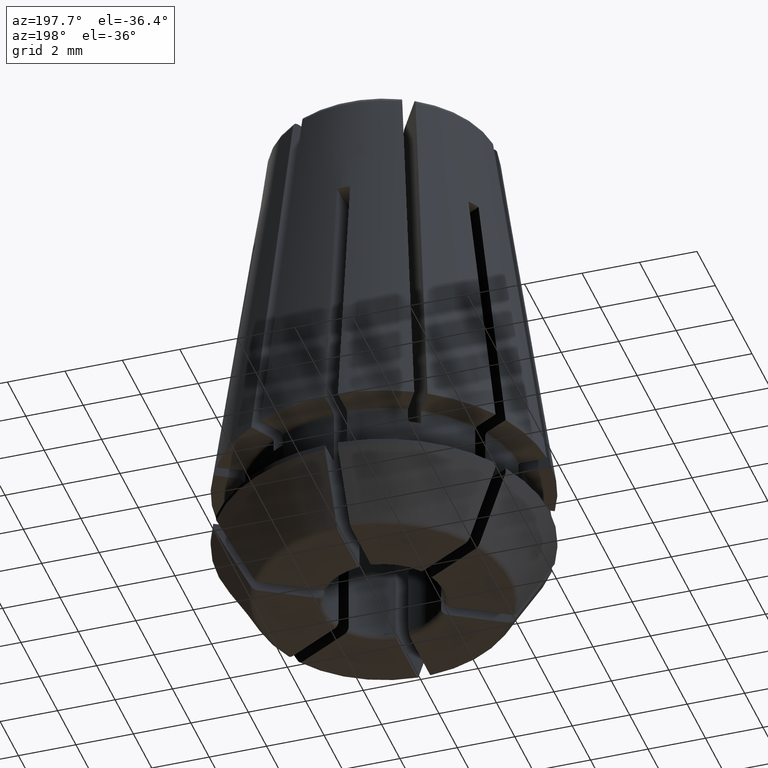
[diagram: clean part render]
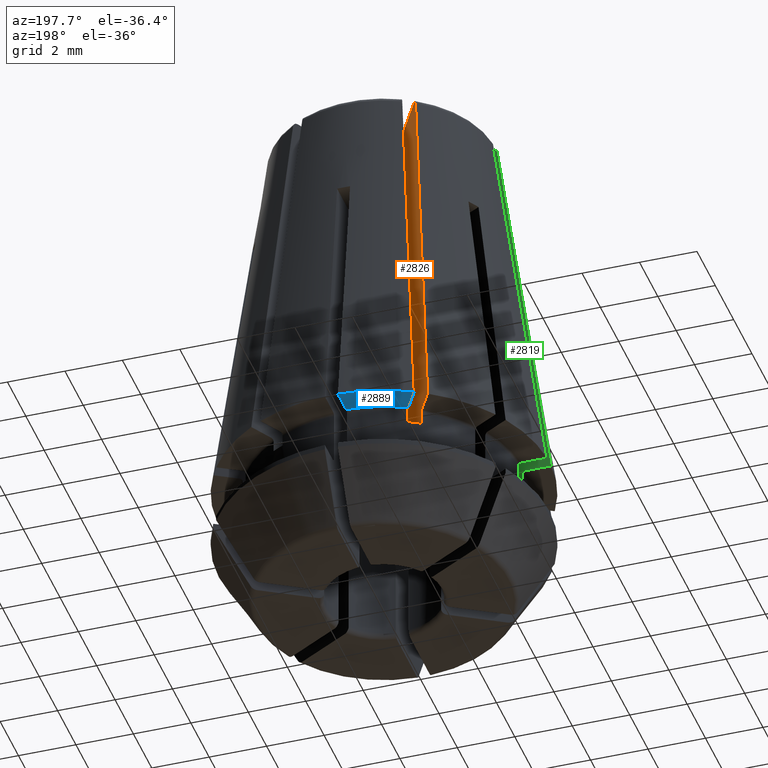
[diagram: same view with three faces highlighted in distinct colors, each labeled with its STEP entity id]
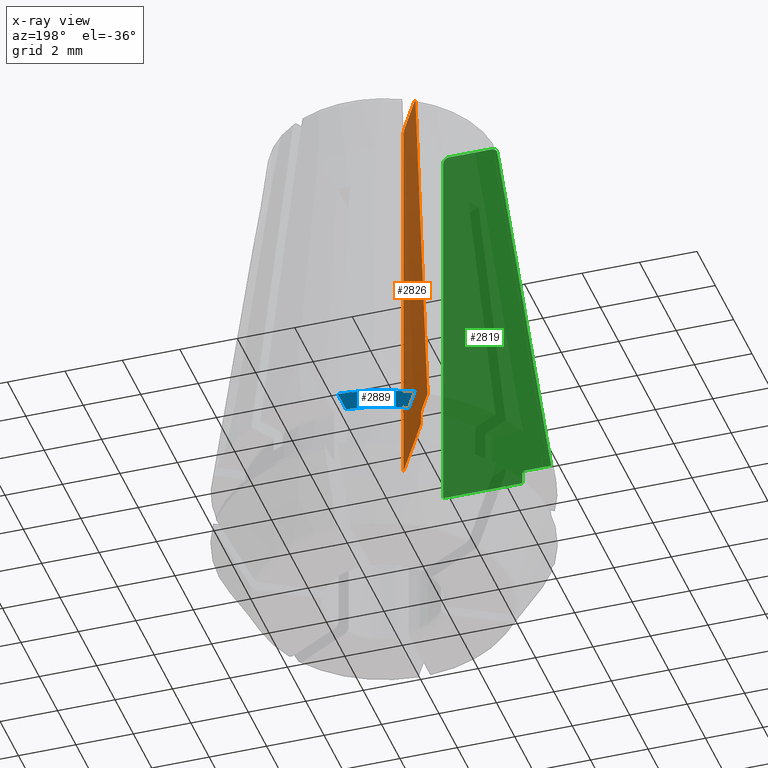
[diagram: x-ray of the same camera — body ghosted, the three highlighted faces saturated]
A machine part, auxiliary view with three faces highlighted in distinct colors.
The next image is the same camera in x-ray (body ghosted, the three faces saturated) — at least one of them is partly hidden behind the body in this view.
Their STEP definitions:

[orange] entity #2826 — the highlighted planar face has unit normal (-0.866, -0.5, 0).
#76=LINE('',#4209,#244);
#119=LINE('',#4611,#287);
#120=LINE('',#4625,#288);
#121=LINE('',#4629,#289);
#122=LINE('',#4631,#290);
#244=VECTOR('',#3341,1000.);
#287=VECTOR('',#3520,1000.);
#288=VECTOR('',#3521,1000.);
#289=VECTOR('',#3524,1000.);
#290=VECTOR('',#3525,1000.);
#420=PLANE('',#3054);
#529=CIRCLE('',#3055,25.);
#814=ORIENTED_EDGE('',*,*,#1619,.F.);
#815=ORIENTED_EDGE('',*,*,#1700,.F.);
#816=ORIENTED_EDGE('',*,*,#1701,.F.);
#817=ORIENTED_EDGE('',*,*,#1702,.F.);
#818=ORIENTED_EDGE('',*,*,#1582,.F.);
#819=ORIENTED_EDGE('',*,*,#1586,.T.);
#820=ORIENTED_EDGE('',*,*,#1703,.F.);
#821=ORIENTED_EDGE('',*,*,#1704,.F.);
#822=ORIENTED_EDGE('',*,*,#1705,.F.);
#823=ORIENTED_EDGE('',*,*,#1706,.T.);
#1582=EDGE_CURVE('',#2035,#2036,#76,.T.);
#1586=EDGE_CURVE('',#2035,#2038,#2312,.T.);
#1619=EDGE_CURVE('',#2069,#2071,#2327,.T.);
#1700=EDGE_CURVE('',#2134,#2069,#119,.T.);
#1701=EDGE_CURVE('',#2135,#2134,#2348,.T.);
#1702=EDGE_CURVE('',#2036,#2135,#2349,.T.);
#1703=EDGE_CURVE('',#2136,#2038,#120,.T.);
#1704=EDGE_CURVE('',#2137,#2136,#529,.T.);
#1705=EDGE_CURVE('',#2138,#2137,#121,.T.);
#1706=EDGE_CURVE('',#2138,#2071,#122,.T.);
#2035=VERTEX_POINT('',#4208);
#2036=VERTEX_POINT('',#4210);
#2038=VERTEX_POINT('',#4219);
#2069=VERTEX_POINT('',#4354);
#2071=VERTEX_POINT('',#4360);
#2134=VERTEX_POINT('',#4612);
#2135=VERTEX_POINT('',#4620);
#2136=VERTEX_POINT('',#4626);
#2137=VERTEX_POINT('',#4628);
#2138=VERTEX_POINT('',#4630);
#2312=B_SPLINE_CURVE_WITH_KNOTS('',3,(#4220,#4221,#4222,#4223),
 .UNSPECIFIED.,.F.,.F.,(4,4),(2.16840434497101E-19,0.000313325900545087),
 .UNSPECIFIED.);
#2327=B_SPLINE_CURVE_WITH_KNOTS('',3,(#4356,#4357,#4358,#4359),
 .UNSPECIFIED.,.F.,.F.,(4,4),(2.95226947766913E-18,0.000156301684380105),
 .UNSPECIFIED.);
#2348=B_SPLINE_CURVE_WITH_KNOTS('',3,(#4613,#4614,#4615,#4616,#4617,#4618,
#4619),.UNSPECIFIED.,.F.,.F.,(4,3,4),(2.01972124516081E-7,0.00680645793045884,
0.0134593135604364),.UNSPECIFIED.);
#2349=B_SPLINE_CURVE_WITH_KNOTS('',3,(#4621,#4622,#4623,#4624),
 .UNSPECIFIED.,.F.,.F.,(4,4),(4.09133713542521E-18,0.000285017154434955),
 .UNSPECIFIED.);
#2468=EDGE_LOOP('',(#814,#815,#816,#817,#818,#819,#820,#821,#822,#823));
#2626=FACE_BOUND('',#2468,.T.);
#2826=ADVANCED_FACE('',(#2626),#420,.F.);
#3054=AXIS2_PLACEMENT_3D('',#4610,#3518,#3519);
#3055=AXIS2_PLACEMENT_3D('',#4627,#3522,#3523);
#3341=DIRECTION('',(-0.5,0.866025403784438,0.));
#3518=DIRECTION('',(-0.866025403784438,-0.5,0.));
#3519=DIRECTION('',(-0.5,0.866025403784438,0.));
#3520=DIRECTION('',(0.5,-0.866025403784438,0.));
#3521=DIRECTION('',(0.,0.,1.));
#3522=DIRECTION('',(-0.866025403784439,-0.5,0.));
#3523=DIRECTION('',(0.,0.,-1.));
#3524=DIRECTION('',(0.5,-0.866025403784438,0.));
#3525=DIRECTION('',(0.,0.,1.));
#4208=CARTESIAN_POINT('',(-1.28908775248723,1.78276548272268,13.5));
#4209=CARTESIAN_POINT('',(0.724854630137124,-1.70548504749904,13.5));
#4210=CARTESIAN_POINT('',(-2.03083290309375,3.06750576984101,13.5));
#4219=CARTESIAN_POINT('',(-1.18850744055169,1.60855527220919,13.3000000000001));
#4220=CARTESIAN_POINT('',(-1.28908775248722,1.78276548272268,13.5));
#4221=CARTESIAN_POINT('',(-1.23611597287897,1.69101566907387,13.5));
#4222=CARTESIAN_POINT('',(-1.18850744055155,1.60855527220898,13.4059604262366));
#4223=CARTESIAN_POINT('',(-1.18850744055151,1.60855527220891,13.3000000000001));
#4354=CARTESIAN_POINT('',(-2.61724477419864,4.0832009247562,-3.86525730697882E-28));
#4356=CARTESIAN_POINT('',(-2.61724477419863,4.0832009247562,-7.59586770066326E-28));
#4357=CARTESIAN_POINT('',(-2.59081957756818,4.03743114159227,-3.18414467700848E-15));
#4358=CARTESIAN_POINT('',(-2.56718974587319,3.99650307252225,-0.04714797776628));
#4359=CARTESIAN_POINT('',(-2.56718974587317,3.9965030725222,-9.99999999999019E-02));
#4360=CARTESIAN_POINT('',(-2.56718974587329,3.99650307252239,-9.99999999999524E-02));
#4610=CARTESIAN_POINT('',(-12.6948557158515,21.538135094611,9.29795897113271));
#4611=CARTESIAN_POINT('',(1.18512586378746,-2.50269820944381,1.0842021724855E-16));
#4612=CARTESIAN_POINT('',(-3.06765378567819,4.86333221682564,4.68190320287022E-17));
#4613=CARTESIAN_POINT('',(-2.13003592859739,3.23933045027783,13.327834620192));
#4614=CARTESIAN_POINT('',(-2.28817192716575,3.51323003430388,11.0812355018997));
#4615=CARTESIAN_POINT('',(-2.44624638924086,3.78702303399709,8.83461905702039));
#4616=CARTESIAN_POINT('',(-2.60428967405201,4.06076203308506,6.58799384239535));
#4617=CARTESIAN_POINT('',(-2.75877095773793,4.32833146524755,4.39200337351099));
#4618=CARTESIAN_POINT('',(-2.91322137466781,4.5958474346203,2.19600421884523));
#4619=CARTESIAN_POINT('',(-3.0676537856782,4.86333221682564,2.86773355150554E-15));
#4620=CARTESIAN_POINT('',(-2.13003592859738,3.23933045027784,13.327834620192));
#4621=CARTESIAN_POINT('',(-2.03083290309374,3.06750576984101,13.5));
#4622=CARTESIAN_POINT('',(-2.07901910026541,3.15096671156587,13.5));
#4623=CARTESIAN_POINT('',(-2.12331826427536,3.22769511436394,13.4232708199153));
#4624=CARTESIAN_POINT('',(-2.13003592859737,3.23933045027785,13.327834620192));
#4625=CARTESIAN_POINT('',(-1.18850744055186,1.60855527220947,60.));
#4626=CARTESIAN_POINT('',(-1.18850744055185,1.60855527220947,-0.470142045443427));
#4627=CARTESIAN_POINT('',(-12.6948557158515,21.538135094611,9.29795897113271));
#4628=CARTESIAN_POINT('',(-1.19485571585149,1.61955080756887,-0.5));
#4629=CARTESIAN_POINT('',(-1.19485571585149,1.61955080756887,-0.5));
#4630=CARTESIAN_POINT('',(-2.56718974587341,3.99650307252258,-0.5));
#4631=CARTESIAN_POINT('',(-2.56718974587341,3.99650307252258,60.));

[blue] entity #2889 — the highlighted planar face has unit normal (0, 0, 1).
#189=LINE('',#5233,#357);
#190=LINE('',#5234,#358);
#357=VECTOR('',#3840,1000.);
#358=VECTOR('',#3841,1000.);
#443=PLANE('',#3179);
#500=CIRCLE('',#3000,5.75);
#590=CIRCLE('',#3177,4.85);
#1123=ORIENTED_EDGE('',*,*,#1891,.F.);
#1124=ORIENTED_EDGE('',*,*,#1602,.F.);
#1125=ORIENTED_EDGE('',*,*,#1892,.T.);
#1126=ORIENTED_EDGE('',*,*,#1888,.T.);
#1602=EDGE_CURVE('',#2054,#2048,#500,.T.);
#1888=EDGE_CURVE('',#2249,#2248,#590,.T.);
#1891=EDGE_CURVE('',#2048,#2248,#189,.T.);
#1892=EDGE_CURVE('',#2054,#2249,#190,.T.);
#2048=VERTEX_POINT('',#4263);
#2054=VERTEX_POINT('',#4299);
#2248=VERTEX_POINT('',#5220);
#2249=VERTEX_POINT('',#5222);
#2531=EDGE_LOOP('',(#1123,#1124,#1125,#1126));
#2689=FACE_BOUND('',#2531,.T.);
#2889=ADVANCED_FACE('',(#2689),#443,.F.);
#3000=AXIS2_PLACEMENT_3D('',#4300,#3368,#3369);
#3177=AXIS2_PLACEMENT_3D('',#5221,#3834,#3835);
#3179=AXIS2_PLACEMENT_3D('',#5232,#3838,#3839);
#3368=DIRECTION('',(0.,0.,1.));
#3369=DIRECTION('',(1.,0.,0.));
#3834=DIRECTION('',(0.,0.,1.));
#3835=DIRECTION('',(1.,0.,0.));
#3838=DIRECTION('',(0.,0.,1.));
#3839=DIRECTION('',(1.,0.,0.));
#3840=DIRECTION('',(0.5,-0.866025403784438,0.));
#3841=DIRECTION('',(0.,-1.,0.));
#4263=CARTESIAN_POINT('',(-2.6779423539752,5.08833221682564,3.01056913857175E-18));
#4299=CARTESIAN_POINT('',(-0.225,5.7455961396534,0.));
#4300=CARTESIAN_POINT('',(0.,0.,0.));
#5220=CARTESIAN_POINT('',(-2.22753334249564,4.3082009247562,0.));
#5221=CARTESIAN_POINT('',(0.,0.,0.));
#5222=CARTESIAN_POINT('',(-0.225,4.8447781166943,5.4210108624275E-17));
#5232=CARTESIAN_POINT('',(5.5199263185558,0.,1.0842021724855E-16));
#5233=CARTESIAN_POINT('',(1.57483729549045,-2.27769820944382,1.0842021724855E-16));
#5234=CARTESIAN_POINT('',(-0.225,0.,1.0842021724855E-16));

[green] entity #2819 — the highlighted planar face has unit normal (0, -1, 0).
#74=LINE('',#4158,#242);
#108=LINE('',#4541,#276);
#109=LINE('',#4558,#277);
#110=LINE('',#4562,#278);
#111=LINE('',#4564,#279);
#242=VECTOR('',#3317,1000.);
#276=VECTOR('',#3483,1000.);
#277=VECTOR('',#3484,1000.);
#278=VECTOR('',#3487,1000.);
#279=VECTOR('',#3488,1000.);
#417=PLANE('',#3041);
#523=CIRCLE('',#3042,25.);
#782=ORIENTED_EDGE('',*,*,#1676,.F.);
#783=ORIENTED_EDGE('',*,*,#1677,.F.);
#784=ORIENTED_EDGE('',*,*,#1678,.F.);
#785=ORIENTED_EDGE('',*,*,#1679,.F.);
#786=ORIENTED_EDGE('',*,*,#1567,.F.);
#787=ORIENTED_EDGE('',*,*,#1571,.T.);
#788=ORIENTED_EDGE('',*,*,#1680,.F.);
#789=ORIENTED_EDGE('',*,*,#1681,.F.);
#790=ORIENTED_EDGE('',*,*,#1682,.F.);
#791=ORIENTED_EDGE('',*,*,#1683,.T.);
#1567=EDGE_CURVE('',#2021,#2022,#74,.T.);
#1571=EDGE_CURVE('',#2021,#2024,#2306,.T.);
#1676=EDGE_CURVE('',#2116,#2117,#2341,.T.);
#1677=EDGE_CURVE('',#2118,#2116,#108,.T.);
#1678=EDGE_CURVE('',#2119,#2118,#2342,.T.);
#1679=EDGE_CURVE('',#2022,#2119,#2343,.T.);
#1680=EDGE_CURVE('',#2120,#2024,#109,.T.);
#1681=EDGE_CURVE('',#2121,#2120,#523,.T.);
#1682=EDGE_CURVE('',#2122,#2121,#110,.T.);
#1683=EDGE_CURVE('',#2122,#2117,#111,.T.);
#2021=VERTEX_POINT('',#4157);
#2022=VERTEX_POINT('',#4159);
#2024=VERTEX_POINT('',#4168);
#2116=VERTEX_POINT('',#4539);
#2117=VERTEX_POINT('',#4540);
#2118=VERTEX_POINT('',#4542);
#2119=VERTEX_POINT('',#4553);
#2120=VERTEX_POINT('',#4559);
#2121=VERTEX_POINT('',#4561);
#2122=VERTEX_POINT('',#4563);
#2306=B_SPLINE_CURVE_WITH_KNOTS('',3,(#4169,#4170,#4171,#4172),
 .UNSPECIFIED.,.F.,.F.,(4,4),(0.,0.00031332590054656),.UNSPECIFIED.);
#2341=B_SPLINE_CURVE_WITH_KNOTS('',3,(#4520,#4521,#4522,#4523,#4524,#4525,
#4526,#4527,#4528,#4529,#4530,#4531,#4532,#4533,#4534,#4535,#4536,#4537,
#4538),.UNSPECIFIED.,.F.,.F.,(4,3,3,3,3,3,4),(0.000582856315655313,0.000604633990424698,
0.000625558554408974,0.000659164936467953,0.000692773135102075,0.000726354625640632,
0.000739160603226776),.UNSPECIFIED.);
#2342=B_SPLINE_CURVE_WITH_KNOTS('',3,(#4543,#4544,#4545,#4546,#4547,#4548,
#4549,#4550,#4551,#4552),.UNSPECIFIED.,.F.,.F.,(4,3,3,4),(0.00551330522870601,
0.00722464384773604,0.0144492876787554,0.0189724168091454),
 .UNSPECIFIED.);
#2343=B_SPLINE_CURVE_WITH_KNOTS('',3,(#4554,#4555,#4556,#4557),
 .UNSPECIFIED.,.F.,.F.,(4,4),(2.16840434497101E-18,0.00028501715443669),
 .UNSPECIFIED.);
#2461=EDGE_LOOP('',(#782,#783,#784,#785,#786,#787,#788,#789,#790,#791));
#2619=FACE_BOUND('',#2461,.T.);
#2819=ADVANCED_FACE('',(#2619),#417,.F.);
#3041=AXIS2_PLACEMENT_3D('',#4519,#3481,#3482);
#3042=AXIS2_PLACEMENT_3D('',#4560,#3485,#3486);
#3317=DIRECTION('',(-1.,-1.22464679914735E-16,0.));
#3481=DIRECTION('',(1.22464679914735E-16,-1.,0.));
#3482=DIRECTION('',(-1.,-1.22464679914735E-16,0.));
#3483=DIRECTION('',(1.,1.22464679914735E-16,0.));
#3484=DIRECTION('',(0.,0.,1.));
#3485=DIRECTION('',(1.22464679914735E-16,-1.,0.));
#3486=DIRECTION('',(0.,0.,-1.));
#3487=DIRECTION('',(1.,1.22464679914735E-16,0.));
#3488=DIRECTION('',(0.,0.,1.));
#4157=CARTESIAN_POINT('',(-2.18846407327148,-0.224999999999999,13.5));
#4158=CARTESIAN_POINT('',(3.67884138395448,-0.225,13.5));
#4159=CARTESIAN_POINT('',(-3.67195437448454,-0.224999999999999,13.5));
#4168=CARTESIAN_POINT('',(-1.98730344940072,-0.224999999999999,13.2999999999986));
#4169=CARTESIAN_POINT('',(-2.18846407327148,-0.224999999999997,13.5));
#4170=CARTESIAN_POINT('',(-2.0825205140545,-0.224999999999997,13.5));
#4171=CARTESIAN_POINT('',(-1.98730344939758,-0.224999999999997,13.4059604262323));
#4172=CARTESIAN_POINT('',(-1.98730344940007,-0.224999999999997,13.2999999999953));
#4519=CARTESIAN_POINT('',(-25.,-0.225,9.29795897113271));
#4520=CARTESIAN_POINT('',(-4.8447781166943,-0.224999999999998,2.42417376025123E-15));
#4521=CARTESIAN_POINT('',(-4.83750605631043,-0.224999999999998,2.1087984135858E-15));
#4522=CARTESIAN_POINT('',(-4.83019129469984,-0.225,-8.00922329233646E-04));
#4523=CARTESIAN_POINT('',(-4.82309155817233,-0.225,-2.37464513409263E-03));
#4524=CARTESIAN_POINT('',(-4.81622248540429,-0.225,-3.89723916577443E-03));
#4525=CARTESIAN_POINT('',(-4.80947774972092,-0.225,-6.15972190506814E-03));
#4526=CARTESIAN_POINT('',(-4.80308012638868,-0.225,-9.08766810962969E-03));
#4527=CARTESIAN_POINT('',(-4.79289407620893,-0.225,-0.013749431613742));
#4528=CARTESIAN_POINT('',(-4.78337170795226,-0.225,-0.020232751924161));
#4529=CARTESIAN_POINT('',(-4.77530215795836,-0.225,-0.028002566602039));
#4530=CARTESIAN_POINT('',(-4.76723235069877,-0.225,-3.57726289897292E-02));
#4531=CARTESIAN_POINT('',(-4.76039293141092,-0.225,-4.50438814919473E-02));
#4532=CARTESIAN_POINT('',(-4.75535275208822,-0.225,-5.50484929841821E-02));
#4533=CARTESIAN_POINT('',(-4.75031655075787,-0.225,-6.50452082756164E-02));
#4534=CARTESIAN_POINT('',(-4.74693780765023,-0.225,-7.60502005401679E-02));
#4535=CARTESIAN_POINT('',(-4.74549793054036,-0.225,-8.71508489161086E-02));
#4536=CARTESIAN_POINT('',(-4.74494583903451,-0.225,-9.14071660947084E-02));
#4537=CARTESIAN_POINT('',(-4.74466806004385,-0.224999999999998,-9.57080259831611E-02));
#4538=CARTESIAN_POINT('',(-4.74466806004382,-0.224999999999998,-9.99999999993544E-02));
#4539=CARTESIAN_POINT('',(-4.8447781166943,-0.225,0.));
#4540=CARTESIAN_POINT('',(-4.74466806004001,-0.225,-0.099999999999506));
#4541=CARTESIAN_POINT('',(5.5199263185558,-0.225,1.0842021724855E-16));
#4542=CARTESIAN_POINT('',(-5.7455961396534,-0.225,3.70477174392886E-17));
#4543=CARTESIAN_POINT('',(-3.87036042549227,-0.224999999999997,13.3278346201885));
#4544=CARTESIAN_POINT('',(-3.94988263079366,-0.224999999999997,12.7629584442003));
#4545=CARTESIAN_POINT('',(-4.02939676888761,-0.225,12.1980811324853));
#4546=CARTESIAN_POINT('',(-4.1089041676004,-0.225,11.6332028722512));
#4547=CARTESIAN_POINT('',(-4.44455523678051,-0.225,9.24849408949913));
#4548=CARTESIAN_POINT('',(-4.78009040912963,-0.225,6.86376899360275));
#4549=CARTESIAN_POINT('',(-5.11556685150051,-0.225,4.47903563840539));
#4550=CARTESIAN_POINT('',(-5.32559841903568,-0.225,2.98602682620454));
#4551=CARTESIAN_POINT('',(-5.53560579087452,-0.224999999999998,1.49301461013963));
#4552=CARTESIAN_POINT('',(-5.74559613965339,-0.224999999999998,-1.52370370580411E-15));
#4553=CARTESIAN_POINT('',(-3.87036042549202,-0.224999999999997,13.3278346201903));
#4554=CARTESIAN_POINT('',(-3.67195437448454,-0.224999999999997,13.5));
#4555=CARTESIAN_POINT('',(-3.76832676882846,-0.224999999999997,13.5));
#4556=CARTESIAN_POINT('',(-3.85692509684982,-0.224999999999997,13.4232708199127));
#4557=CARTESIAN_POINT('',(-3.87036042549227,-0.224999999999997,13.3278346201886));
#4558=CARTESIAN_POINT('',(-1.98730344940072,-0.225,60.));
#4559=CARTESIAN_POINT('',(-1.98730344940072,-0.224999999999999,-0.470142045443454));
#4560=CARTESIAN_POINT('',(-25.,-0.225,9.29795897113271));
#4561=CARTESIAN_POINT('',(-2.,-0.225,-0.5));
#4562=CARTESIAN_POINT('',(-2.,-0.225,-0.5));
#4563=CARTESIAN_POINT('',(-4.74466806004382,-0.225,-0.5));
#4564=CARTESIAN_POINT('',(-4.74466806004382,-0.225,60.));